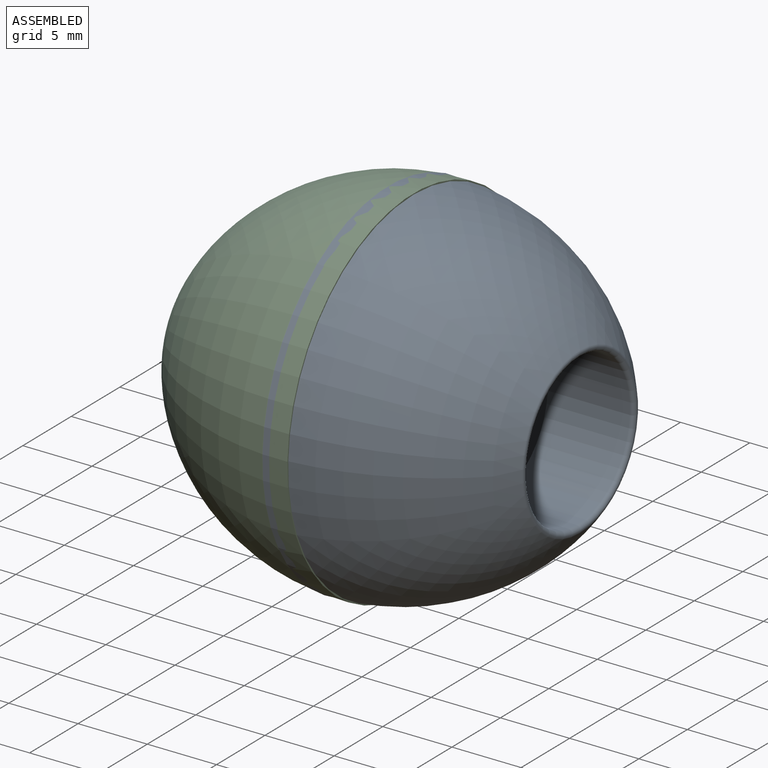
[diagram: assembled view]
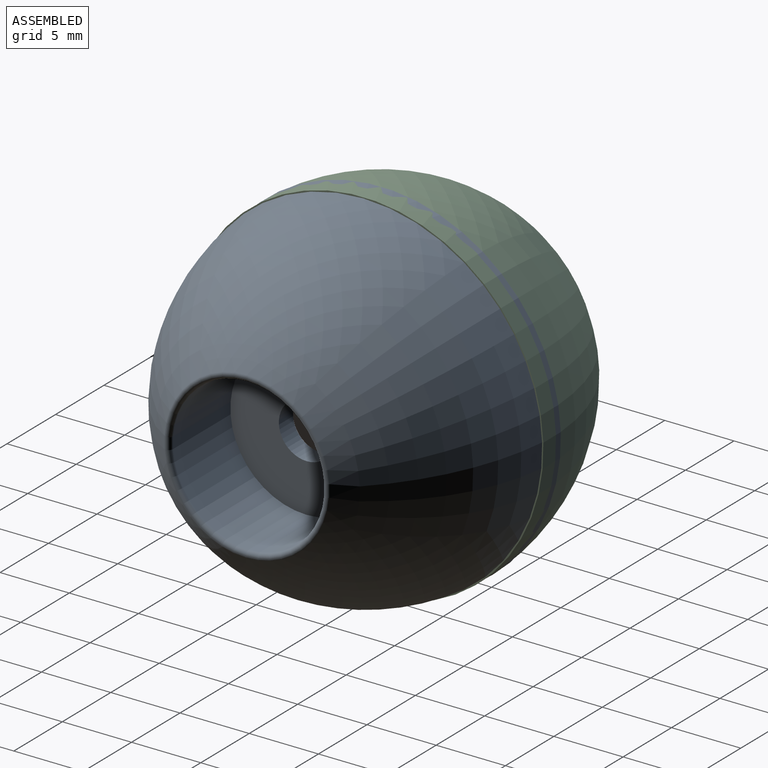
[diagram: assembled view, second angle]
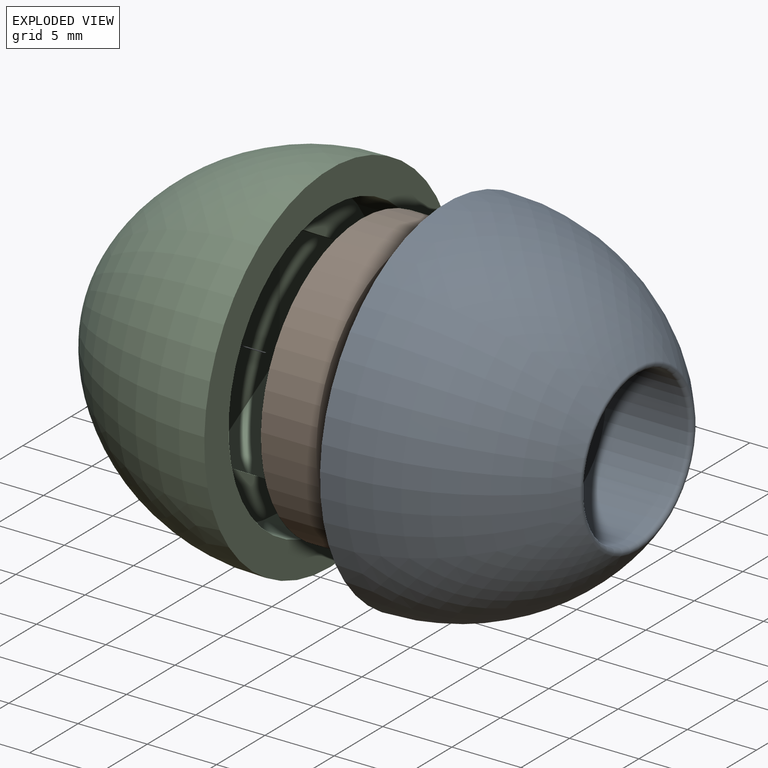
[diagram: exploded view]
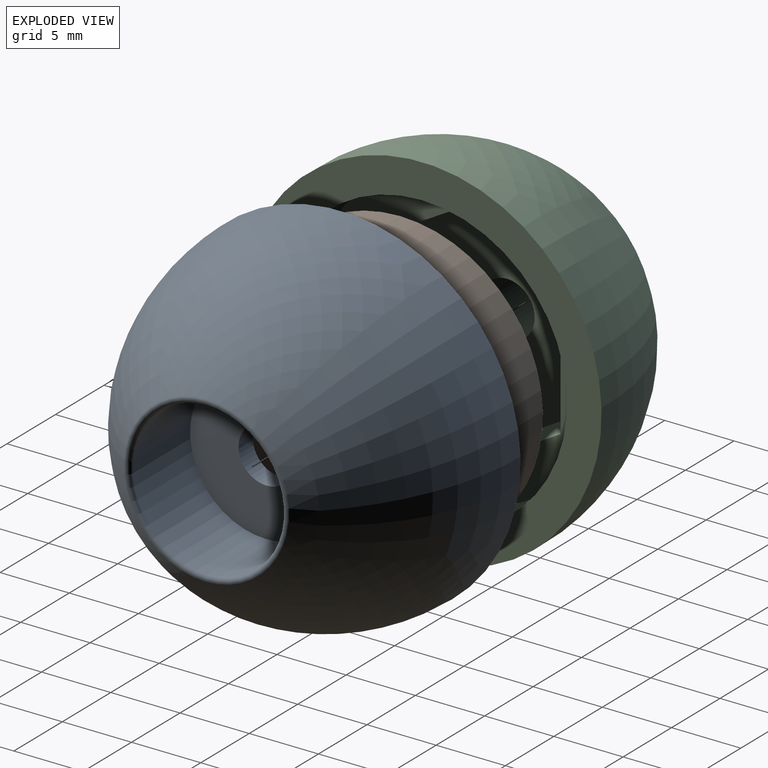
[diagram: exploded view, second angle]
ASSEMBLY  parts=3 mates=4
PART A: 15 faces, bbox 13.9x26x26 mm
  f0: plane 17x14.72mm, normal (1,0,0), area 175.1mm2, adj f5,f9,f10,f11,f12,f13,f14
  f1: plane 26x26mm, normal (1,0,0), area 184.6mm2, adj f2,f7
  f2: revolved ~26x26mm, area 1073mm2, adj f1,f8
  f3: cylinder r=5.5mm len=11mm, axis (-1,0,0), area 204.7mm2, adj f4,f8
  f4: plane 11x11mm, normal (-1,0,0), area 82.5mm2, adj f3,f5
  f5: cylinder r=2mm len=4mm, axis (-1,0,0), area 18.5mm2, adj f0,f4
  f6: plane 21x21mm, normal (1,0,0), area 158.6mm2, adj f7,f9,f10,f11,f12,f13,f14
  f7: cylinder r=10.5mm len=21mm, axis (-1,0,0), area 131.9mm2, adj f1,f6
  f8: torus R=5.8mm, axis (1,0,0), area 23.6mm2, adj f2,f3
  f9: plane 8.5x4.2mm, normal (0,-1,0), area 35.7mm2, adj f0,f6,f11,f12
  f10: plane 7.36x4.25mm, normal (0,0.5,-0.87), area 35.7mm2, adj f0,f6,f11,f14
  f11: plane 7.36x4.25mm, normal (0,-0.5,-0.87), area 35.7mm2, adj f0,f6,f9,f10
  f12: plane 7.36x4.25mm, normal (0,-0.5,0.87), area 35.7mm2, adj f0,f6,f9,f13
  f13: plane 7.36x4.25mm, normal (0,0.5,0.87), area 35.7mm2, adj f0,f6,f12,f14
  f14: plane 8.5x4.2mm, normal (0,1,0), area 35.7mm2, adj f0,f6,f10,f13
PART B: 9 faces, bbox 4x20.6x20.6 mm
  f0: plane 20.6x20.6mm, normal (-1,0,0), area 145.6mm2, adj f2,f3,f4,f5,f6,f7,f8
  f1: plane 20.6x20.6mm, normal (1,0,0), area 145.6mm2, adj f2,f3,f4,f5,f6,f7,f8
  f2: cylinder r=10.3mm len=20.6mm, axis (-1,0,0), area 258.9mm2, adj f0,f1
  f3: plane 7.36x4.25mm, normal (0,-0.5,-0.87), area 34mm2, adj f0,f1,f4,f8
  f4: plane 8.5x4mm, normal (0,-1,0), area 34mm2, adj f0,f1,f3,f5
  f5: plane 7.36x4.25mm, normal (0,-0.5,0.87), area 34mm2, adj f0,f1,f4,f6
  f6: plane 7.36x4.25mm, normal (0,0.5,0.87), area 34mm2, adj f0,f1,f5,f7
  f7: plane 8.5x4mm, normal (0,1,0), area 34mm2, adj f0,f1,f6,f8
  f8: plane 7.36x4.25mm, normal (0,0.5,-0.87), area 34mm2, adj f0,f1,f3,f7
PART C: 13 faces, bbox 15.9x26x26 mm
  f0: plane 17x14.72mm, normal (-1,0,0), area 175.1mm2, adj f1,f7,f8,f9,f10,f11,f12
  f1: cylinder r=2mm len=6.78mm, axis (-1,0,0), area 85.2mm2, adj f0,f6
  f2: revolved ~26.03x26.03mm, area 1205.9mm2, adj f3,f6
  f3: plane 26x26mm, normal (-1,0,0), area 184.6mm2, adj f2,f4
  f4: cylinder r=10.5mm len=21mm, axis (-1,0,0), area 250.7mm2, adj f3,f5
  f5: plane 21x21mm, normal (-1,0,0), area 158.6mm2, adj f4,f7,f8,f9,f10,f11,f12
  f6: torus R=2.3mm, axis (1,0,0), area 7.8mm2, adj f1,f2
  f7: plane 8.5x5mm, normal (0,-1,0), area 42.5mm2, adj f0,f5,f9,f10
  f8: plane 7.36x5mm, normal (0,0.5,-0.87), area 42.5mm2, adj f0,f5,f9,f12
  f9: plane 7.36x5mm, normal (0,-0.5,-0.87), area 42.5mm2, adj f0,f5,f7,f8
  f10: plane 7.36x5mm, normal (0,-0.5,0.87), area 42.5mm2, adj f0,f5,f7,f11
  f11: plane 7.36x5mm, normal (0,0.5,0.87), area 42.5mm2, adj f0,f5,f10,f12
  f12: plane 8.5x5mm, normal (0,1,0), area 42.5mm2, adj f0,f5,f8,f11
PLACE A rot(axis=(0,1,0),180deg) t=(2.69,30.3,3.41)mm
PLACE B rot(axis=(-0.87,-0.34,0.34),0deg) t=(24.06,30.3,-6.62)mm
PLACE C rot(axis=(0,-1,0),180deg) t=(42.28,30.3,-11.91)mm
MATE cylindrical B.f2 <-> A.f8  axis (-1,0,0) through (4.7,30.3,6.56)mm
MATE cylindrical C.f1 <-> B.f2  axis (1,0,0) through (6.5,30.3,6.56)mm
MATE planar A.f8 <-> B.f1  axis (-1,0,0) through (6.7,30.3,6.56)mm
MATE planar C.f1 <-> B.f0  axis (1,0,0) through (2.7,30.3,6.56)mm
